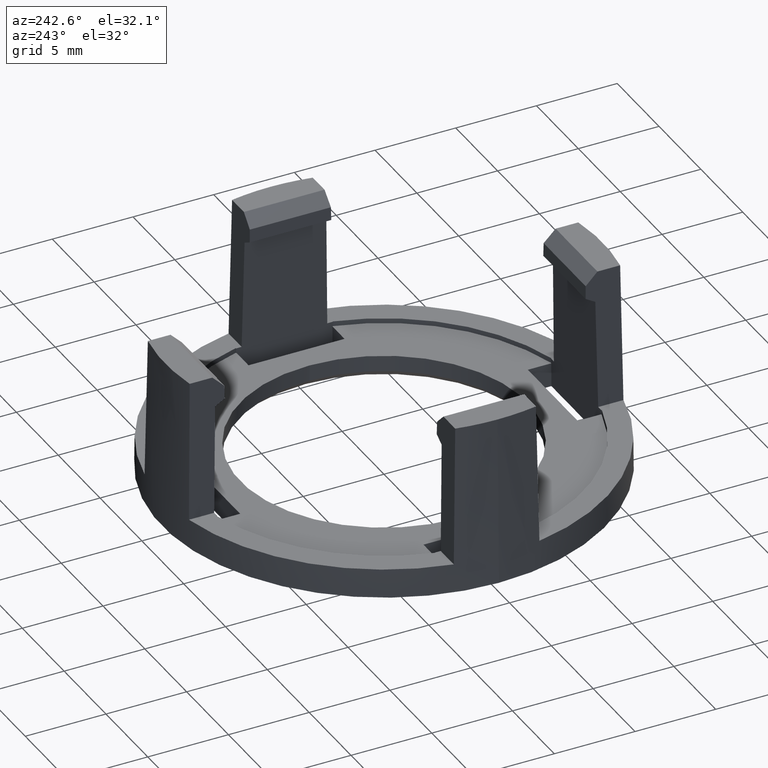
[diagram: clean part render]
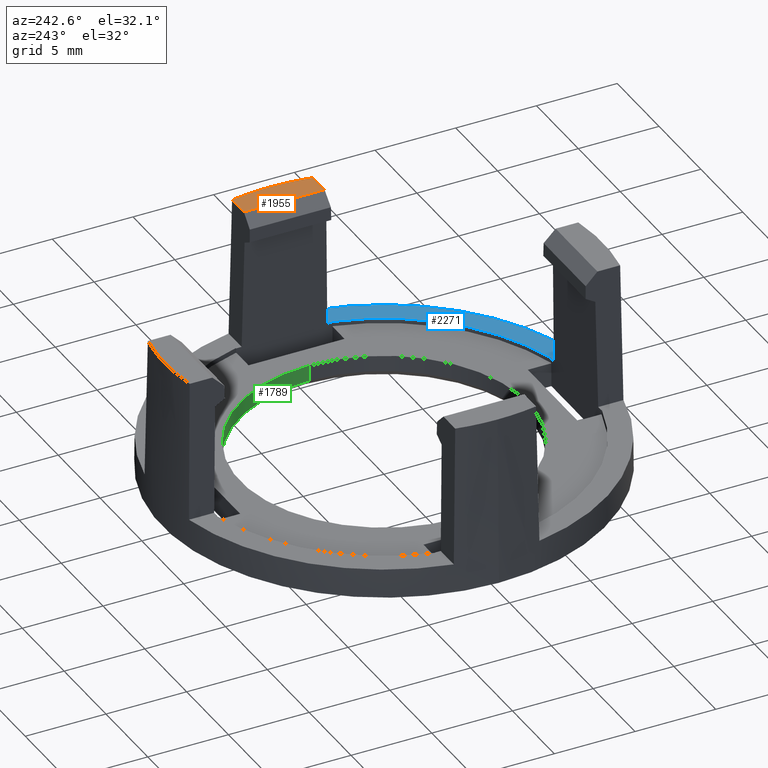
[diagram: same view with three faces highlighted in distinct colors, each labeled with its STEP entity id]
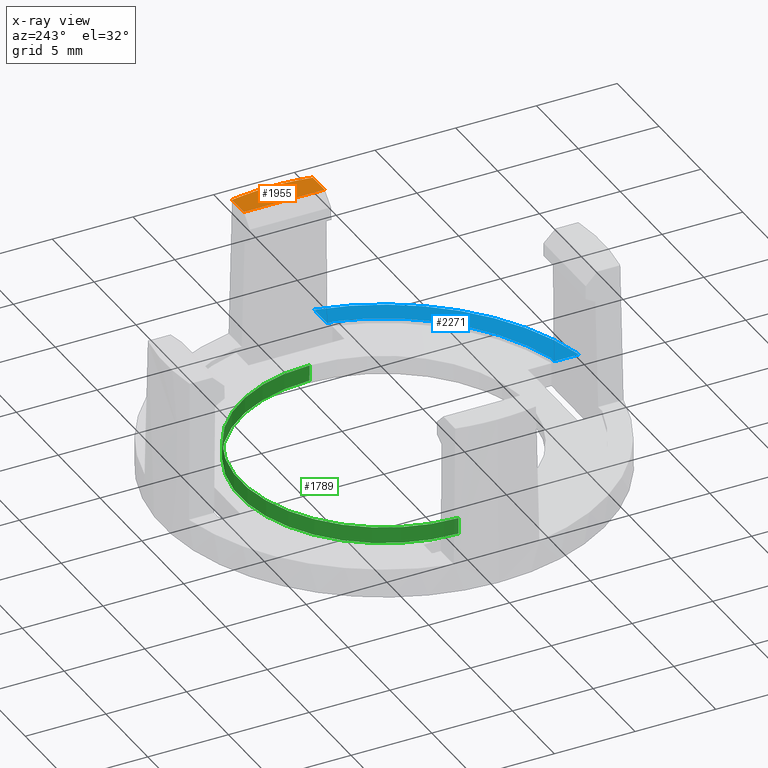
[diagram: x-ray of the same camera — body ghosted, the three highlighted faces saturated]
A machine part, auxiliary view with three faces highlighted in distinct colors.
The next image is the same camera in x-ray (body ghosted, the three faces saturated) — at least one of them is partly hidden behind the body in this view.
Their STEP definitions:

[orange] entity #1955 — the highlighted planar face has unit normal (0, 0, 1).
#388=CARTESIAN_POINT('',(0.E0,0.E0,9.E0));
#389=DIRECTION('',(0.E0,0.E0,-1.E0));
#390=DIRECTION('',(1.E0,0.E0,0.E0));
#391=AXIS2_PLACEMENT_3D('',#388,#389,#390);
#488=DIRECTION('',(0.E0,1.E0,0.E0));
#489=VECTOR('',#488,5.E0);
#490=CARTESIAN_POINT('',(1.192853721124E1,-2.5E0,9.E0));
#491=LINE('',#490,#489);
#495=DIRECTION('',(-1.E0,0.E0,0.E0));
#496=VECTOR('',#495,1.405852197121E0);
#497=CARTESIAN_POINT('',(1.333438940836E1,2.5E0,9.E0));
#498=LINE('',#497,#496);
#502=DIRECTION('',(1.E0,0.E0,0.E0));
#503=VECTOR('',#502,1.405852197121E0);
#504=CARTESIAN_POINT('',(1.192853721124E1,-2.5E0,9.E0));
#505=LINE('',#504,#503);
#574=CARTESIAN_POINT('',(0.E0,0.E0,9.E0));
#575=DIRECTION('',(0.E0,0.E0,1.E0));
#576=DIRECTION('',(1.E0,0.E0,0.E0));
#577=AXIS2_PLACEMENT_3D('',#574,#575,#576);
#1446=CARTESIAN_POINT('',(1.356672181825E1,0.E0,9.E0));
#1448=VERTEX_POINT('',#1446);
#1572=CARTESIAN_POINT('',(1.333438940836E1,2.5E0,9.E0));
#1573=VERTEX_POINT('',#1572);
#1574=CARTESIAN_POINT('',(1.192853721124E1,2.5E0,9.E0));
#1575=VERTEX_POINT('',#1574);
#1578=CARTESIAN_POINT('',(1.333438940836E1,-2.5E0,9.E0));
#1579=VERTEX_POINT('',#1578);
#1580=CARTESIAN_POINT('',(1.192853721124E1,-2.5E0,9.E0));
#1581=VERTEX_POINT('',#1580);
#1939=CARTESIAN_POINT('',(0.E0,0.E0,9.E0));
#1940=DIRECTION('',(0.E0,0.E0,1.E0));
#1941=DIRECTION('',(-1.E0,0.E0,0.E0));
#1942=AXIS2_PLACEMENT_3D('',#1939,#1940,#1941);
#1943=PLANE('',#1942);
#1945=ORIENTED_EDGE('',*,*,#1944,.T.);
#1947=ORIENTED_EDGE('',*,*,#1946,.F.);
#1949=ORIENTED_EDGE('',*,*,#1948,.F.);
#1950=ORIENTED_EDGE('',*,*,#1888,.T.);
#1952=ORIENTED_EDGE('',*,*,#1951,.F.);
#1953=EDGE_LOOP('',(#1945,#1947,#1949,#1950,#1952));
#1954=FACE_OUTER_BOUND('',#1953,.F.);
#1955=ADVANCED_FACE('',(#1954),#1943,.T.);
#392=CIRCLE('',#391,1.356672181825E1);
#578=CIRCLE('',#577,1.356672181825E1);
#1888=EDGE_CURVE('',#1448,#1579,#392,.T.);
#1944=EDGE_CURVE('',#1581,#1575,#491,.T.);
#1946=EDGE_CURVE('',#1573,#1575,#498,.T.);
#1948=EDGE_CURVE('',#1448,#1573,#578,.T.);
#1951=EDGE_CURVE('',#1581,#1579,#505,.T.);

[blue] entity #2271 — the highlighted planar face has unit normal (0, 0, 1).
#370=CARTESIAN_POINT('',(0.E0,0.E0,3.000000000001E-1));
#371=DIRECTION('',(0.E0,0.E0,1.E0));
#372=DIRECTION('',(1.933041826605E-1,-9.811388754738E-1,0.E0));
#373=AXIS2_PLACEMENT_3D('',#370,#371,#372);
#853=CARTESIAN_POINT('',(0.E0,0.E0,3.000000000002E-1));
#854=DIRECTION('',(0.E0,0.E0,1.E0));
#855=DIRECTION('',(2.437986458246E-1,-9.698258711202E-1,0.E0));
#856=AXIS2_PLACEMENT_3D('',#853,#854,#855);
#913=DIRECTION('',(0.E0,1.E0,0.E0));
#914=VECTOR('',#913,1.562714926398E0);
#915=CARTESIAN_POINT('',(2.651859064875E0,-1.345983302077E1,3.E-1));
#916=LINE('',#915,#914);
#920=DIRECTION('',(1.E0,0.E0,0.E0));
#921=VECTOR('',#920,1.562714926398E0);
#922=CARTESIAN_POINT('',(1.189711809437E1,-2.651859064875E0,3.E-1));
#923=LINE('',#922,#921);
#983=DIRECTION('',(-1.E0,0.E0,0.E0));
#984=VECTOR('',#983,3.481409351245E-1);
#985=CARTESIAN_POINT('',(3.E0,-1.189711809437E1,3.E-1));
#986=LINE('',#985,#984);
#1249=DIRECTION('',(-1.206153460997E-14,1.E0,4.100921767391E-13));
#1250=VECTOR('',#1249,3.681863247176E-2);
#1251=CARTESIAN_POINT('',(3.E0,-1.193393672684E1,3.E-1));
#1252=LINE('',#1251,#1250);
#1270=DIRECTION('',(1.E0,-1.206153460997E-14,-4.100921767390E-13));
#1271=VECTOR('',#1270,3.681863247177E-2);
#1272=CARTESIAN_POINT('',(1.189711809437E1,-3.E0,3.E-1));
#1273=LINE('',#1272,#1271);
#1284=DIRECTION('',(0.E0,1.E0,0.E0));
#1285=VECTOR('',#1284,3.481409351245E-1);
#1286=CARTESIAN_POINT('',(1.189711809437E1,-3.E0,3.E-1));
#1287=LINE('',#1286,#1285);
#1475=CARTESIAN_POINT('',(1.189711809437E1,-3.E0,3.E-1));
#1477=VERTEX_POINT('',#1475);
#1547=CARTESIAN_POINT('',(3.E0,-1.189711809437E1,3.E-1));
#1549=VERTEX_POINT('',#1547);
#1576=CARTESIAN_POINT('',(1.189711809437E1,-2.651859064875E0,3.E-1));
#1577=VERTEX_POINT('',#1576);
#1582=CARTESIAN_POINT('',(1.345983302077E1,-2.651859064875E0,3.E-1));
#1583=VERTEX_POINT('',#1582);
#1654=CARTESIAN_POINT('',(2.651859064875E0,-1.189711809437E1,3.E-1));
#1655=VERTEX_POINT('',#1654);
#1656=CARTESIAN_POINT('',(2.651859064875E0,-1.345983302077E1,
3.000000000001E-1));
#1657=VERTEX_POINT('',#1656);
#1689=CARTESIAN_POINT('',(3.E0,-1.193393672684E1,3.000000000002E-1));
#1690=CARTESIAN_POINT('',(1.193393672684E1,-3.E0,3.000000000002E-1));
#1691=VERTEX_POINT('',#1689);
#1692=VERTEX_POINT('',#1690);
#2251=CARTESIAN_POINT('',(0.E0,0.E0,3.E-1));
#2252=DIRECTION('',(0.E0,0.E0,1.E0));
#2253=DIRECTION('',(0.E0,-1.E0,0.E0));
#2254=AXIS2_PLACEMENT_3D('',#2251,#2252,#2253);
#2255=PLANE('',#2254);
#2257=ORIENTED_EDGE('',*,*,#2256,.T.);
#2259=ORIENTED_EDGE('',*,*,#2258,.F.);
#2261=ORIENTED_EDGE('',*,*,#2260,.F.);
#2262=ORIENTED_EDGE('',*,*,#2168,.T.);
#2264=ORIENTED_EDGE('',*,*,#2263,.F.);
#2266=ORIENTED_EDGE('',*,*,#2265,.T.);
#2267=ORIENTED_EDGE('',*,*,#2239,.T.);
#2268=ORIENTED_EDGE('',*,*,#1884,.F.);
#2269=EDGE_LOOP('',(#2257,#2259,#2261,#2262,#2264,#2266,#2267,#2268));
#2270=FACE_OUTER_BOUND('',#2269,.F.);
#2271=ADVANCED_FACE('',(#2270),#2255,.T.);
#374=CIRCLE('',#373,1.371858088313E1);
#857=CIRCLE('',#856,1.230523651948E1);
#1884=EDGE_CURVE('',#1657,#1583,#374,.T.);
#2168=EDGE_CURVE('',#1691,#1692,#857,.T.);
#2239=EDGE_CURVE('',#1577,#1583,#923,.T.);
#2256=EDGE_CURVE('',#1657,#1655,#916,.T.);
#2258=EDGE_CURVE('',#1549,#1655,#986,.T.);
#2260=EDGE_CURVE('',#1691,#1549,#1252,.T.);
#2263=EDGE_CURVE('',#1477,#1692,#1273,.T.);
#2265=EDGE_CURVE('',#1477,#1577,#1287,.T.);

[green] entity #1789 — the highlighted conical surface has half-angle 1 deg.
#15=CARTESIAN_POINT('',(0.E0,0.E0,2.842170943040E-13));
#16=DIRECTION('',(0.E0,0.E0,1.E0));
#17=DIRECTION('',(1.E0,0.E0,0.E0));
#18=AXIS2_PLACEMENT_3D('',#15,#16,#17);
#172=DIRECTION('',(-1.745240643729E-2,0.E0,-9.998476951564E-1));
#173=VECTOR('',#172,1.000152328044E0);
#174=CARTESIAN_POINT('',(-8.9E0,0.E0,0.E0));
#175=LINE('',#174,#173);
#179=DIRECTION('',(1.745240643729E-2,0.E0,-9.998476951564E-1));
#180=VECTOR('',#179,1.000152328044E0);
#181=CARTESIAN_POINT('',(8.9E0,0.E0,0.E0));
#182=LINE('',#181,#180);
#1438=CARTESIAN_POINT('',(0.E0,0.E0,-1.E0));
#1439=DIRECTION('',(0.E0,0.E0,1.E0));
#1440=DIRECTION('',(1.E0,0.E0,0.E0));
#1441=AXIS2_PLACEMENT_3D('',#1438,#1439,#1440);
#1454=CARTESIAN_POINT('',(8.9E0,0.E0,2.858519977809E-13));
#1455=CARTESIAN_POINT('',(-8.9E0,0.E0,2.825821908272E-13));
#1456=VERTEX_POINT('',#1454);
#1457=VERTEX_POINT('',#1455);
#1458=CARTESIAN_POINT('',(8.917455064928E0,0.E0,-1.E0));
#1459=VERTEX_POINT('',#1458);
#1460=CARTESIAN_POINT('',(-8.917455064928E0,0.E0,-1.E0));
#1461=VERTEX_POINT('',#1460);
#1775=CARTESIAN_POINT('',(0.E0,0.E0,-5.E-1));
#1776=DIRECTION('',(0.E0,0.E0,-1.E0));
#1777=DIRECTION('',(1.E0,0.E0,0.E0));
#1778=AXIS2_PLACEMENT_3D('',#1775,#1776,#1777);
#1779=CONICAL_SURFACE('',#1778,8.908727532464E0,1.E0);
#1780=ORIENTED_EDGE('',*,*,#1768,.F.);
#1782=ORIENTED_EDGE('',*,*,#1781,.T.);
#1784=ORIENTED_EDGE('',*,*,#1783,.T.);
#1786=ORIENTED_EDGE('',*,*,#1785,.F.);
#1787=EDGE_LOOP('',(#1780,#1782,#1784,#1786));
#1788=FACE_OUTER_BOUND('',#1787,.F.);
#1789=ADVANCED_FACE('',(#1788),#1779,.F.);
#19=CIRCLE('',#18,8.9E0);
#1442=CIRCLE('',#1441,8.917455064928E0);
#1768=EDGE_CURVE('',#1456,#1457,#19,.T.);
#1781=EDGE_CURVE('',#1456,#1459,#182,.T.);
#1783=EDGE_CURVE('',#1459,#1461,#1442,.T.);
#1785=EDGE_CURVE('',#1457,#1461,#175,.T.);